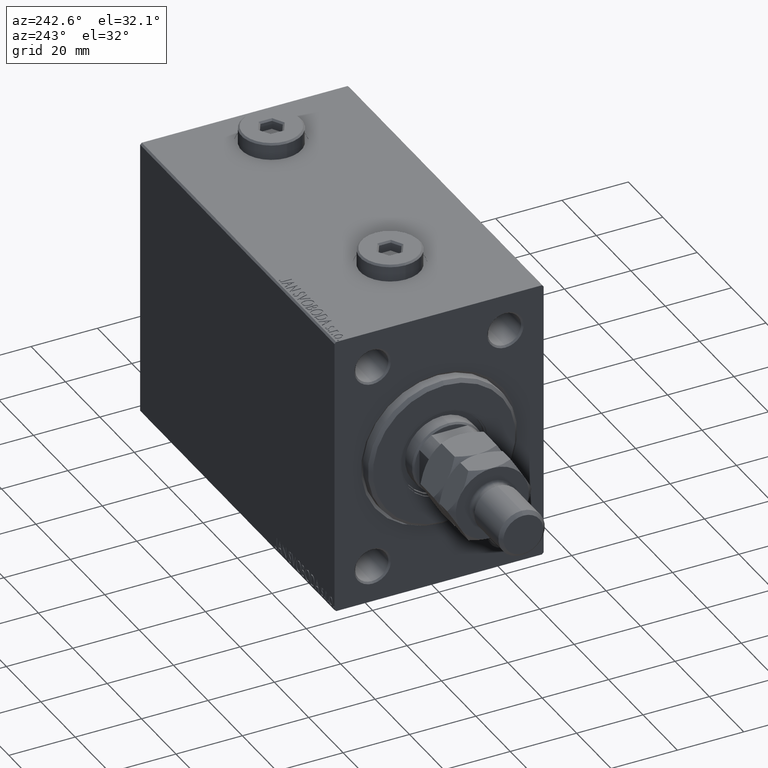
[diagram: clean part render]
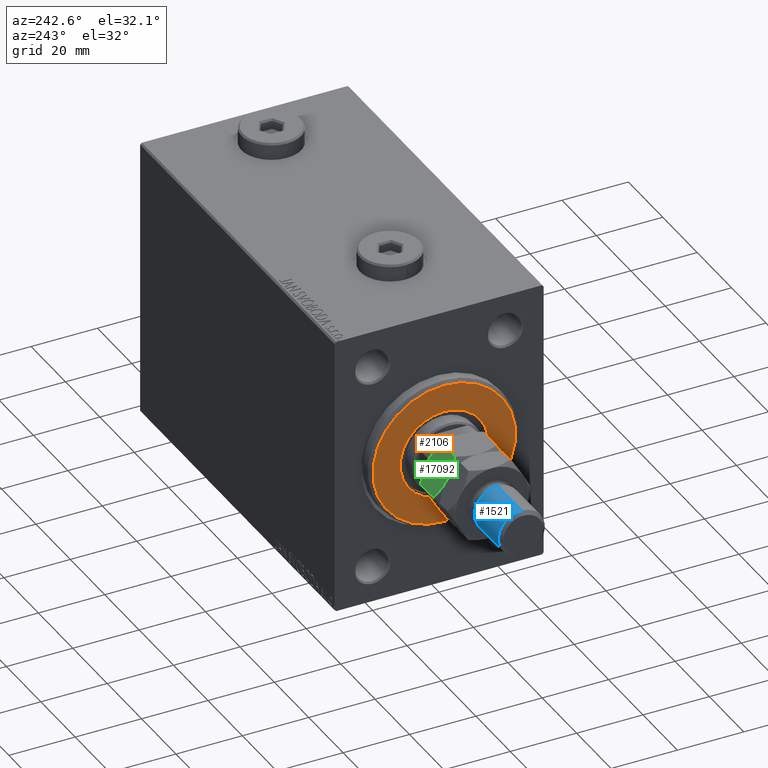
[diagram: same view with three faces highlighted in distinct colors, each labeled with its STEP entity id]
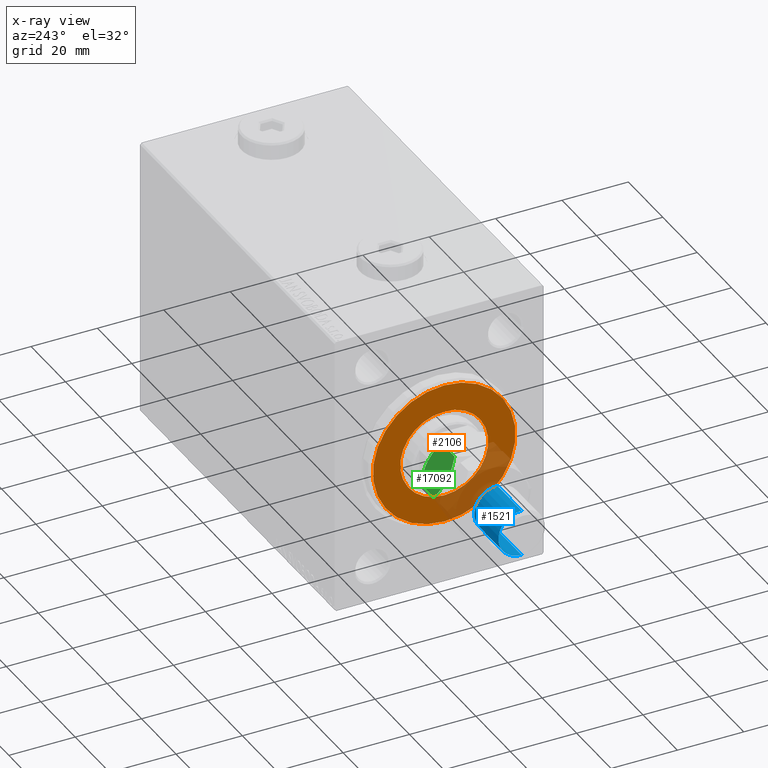
[diagram: x-ray of the same camera — body ghosted, the three highlighted faces saturated]
A machine part, auxiliary view with three faces highlighted in distinct colors.
The next image is the same camera in x-ray (body ghosted, the three faces saturated) — at least one of them is partly hidden behind the body in this view.
Their STEP definitions:

[orange] entity #2106 — the highlighted planar face has unit normal (-1, 0, 0).
#286 = DIRECTION ( 'NONE',  ( 1.000000000000000000, -0.000000000000000000, 0.000000000000000000 ) ) ;
#2106 = ADVANCED_FACE ( 'NONE', ( #25344, #43942 ), #17487, .T. ) ;
#2993 = CIRCLE ( 'NONE', #7588, 21.50000000000000355 ) ;
#7384 = CARTESIAN_POINT ( 'NONE',  ( 3.000000000000000000, 1.622657008870243277E-15, 13.25000000000000178 ) ) ;
#7588 = AXIS2_PLACEMENT_3D ( 'NONE', #21800, #32537, #43741 ) ;
#8364 = AXIS2_PLACEMENT_3D ( 'NONE', #39610, #21268, #18159 ) ;
#9702 = VERTEX_POINT ( 'NONE', #7384 ) ;
#9765 = DIRECTION ( 'NONE',  ( 1.000000000000000000, 0.000000000000000000, 0.000000000000000000 ) ) ;
#10963 = DIRECTION ( 'NONE',  ( 1.000000000000000000, 0.000000000000000000, 0.000000000000000000 ) ) ;
#11523 = AXIS2_PLACEMENT_3D ( 'NONE', #43706, #286, #43237 ) ;
#15216 = CIRCLE ( 'NONE', #8364, 21.50000000000000355 ) ;
#15774 = EDGE_LOOP ( 'NONE', ( #42548, #31243 ) ) ;
#17487 = PLANE ( 'NONE',  #11523 ) ;
#18159 = DIRECTION ( 'NONE',  ( 0.000000000000000000, 0.000000000000000000, -1.000000000000000000 ) ) ;
#20964 = CARTESIAN_POINT ( 'NONE',  ( 3.000000000000000000, 0.000000000000000000, 0.000000000000000000 ) ) ;
#21268 = DIRECTION ( 'NONE',  ( 1.000000000000000000, -0.000000000000000000, 0.000000000000000000 ) ) ;
#21800 = CARTESIAN_POINT ( 'NONE',  ( 3.000000000000000000, 0.000000000000000000, 0.000000000000000000 ) ) ;
#21855 = ORIENTED_EDGE ( 'NONE', *, *, #23402, .F. ) ;
#22645 = CIRCLE ( 'NONE', #40120, 13.25000000000000178 ) ;
#23402 = EDGE_CURVE ( 'NONE', #45604, #9702, #22645, .T. ) ;
#23484 = CARTESIAN_POINT ( 'NONE',  ( 3.000000000000000000, 2.694222958124177598E-15, -21.50000000000000355 ) ) ;
#25344 = FACE_OUTER_BOUND ( 'NONE', #15774, .T. ) ;
#28350 = DIRECTION ( 'NONE',  ( 0.000000000000000000, 0.000000000000000000, -1.000000000000000000 ) ) ;
#28624 = EDGE_CURVE ( 'NONE', #29833, #32337, #2993, .T. ) ;
#29332 = CARTESIAN_POINT ( 'NONE',  ( 3.000000000000000000, 0.000000000000000000, 0.000000000000000000 ) ) ;
#29833 = VERTEX_POINT ( 'NONE', #31550 ) ;
#31243 = ORIENTED_EDGE ( 'NONE', *, *, #33946, .T. ) ;
#31550 = CARTESIAN_POINT ( 'NONE',  ( 3.000000000000000000, 0.000000000000000000, 21.50000000000000355 ) ) ;
#32003 = ORIENTED_EDGE ( 'NONE', *, *, #44231, .F. ) ;
#32337 = VERTEX_POINT ( 'NONE', #23484 ) ;
#32437 = EDGE_LOOP ( 'NONE', ( #21855, #32003 ) ) ;
#32537 = DIRECTION ( 'NONE',  ( 1.000000000000000000, -0.000000000000000000, 0.000000000000000000 ) ) ;
#33842 = CIRCLE ( 'NONE', #37640, 13.25000000000000178 ) ;
#33946 = EDGE_CURVE ( 'NONE', #32337, #29833, #15216, .T. ) ;
#37640 = AXIS2_PLACEMENT_3D ( 'NONE', #29332, #10963, #43882 ) ;
#39610 = CARTESIAN_POINT ( 'NONE',  ( 3.000000000000000000, 0.000000000000000000, 0.000000000000000000 ) ) ;
#40120 = AXIS2_PLACEMENT_3D ( 'NONE', #20964, #9765, #28350 ) ;
#42548 = ORIENTED_EDGE ( 'NONE', *, *, #28624, .T. ) ;
#43237 = DIRECTION ( 'NONE',  ( 0.000000000000000000, 0.000000000000000000, -1.000000000000000000 ) ) ;
#43706 = CARTESIAN_POINT ( 'NONE',  ( 3.000000000000000000, 0.000000000000000000, 0.000000000000000000 ) ) ;
#43741 = DIRECTION ( 'NONE',  ( 0.000000000000000000, 0.000000000000000000, -1.000000000000000000 ) ) ;
#43882 = DIRECTION ( 'NONE',  ( 0.000000000000000000, 0.000000000000000000, -1.000000000000000000 ) ) ;
#43942 = FACE_BOUND ( 'NONE', #32437, .T. ) ;
#44231 = EDGE_CURVE ( 'NONE', #9702, #45604, #33842, .T. ) ;
#45604 = VERTEX_POINT ( 'NONE', #46352 ) ;
#46352 = CARTESIAN_POINT ( 'NONE',  ( 3.000000000000000000, 0.000000000000000000, -13.25000000000000178 ) ) ;

[blue] entity #1521 — the highlighted cylindrical surface (edge-blend (fillet) strip) has radius 7 mm, axis along (1, -0, -0).
#4 = ORIENTED_EDGE ( 'NONE', *, *, #16789, .T. ) ;
#1521 = ADVANCED_FACE ( 'NONE', ( #25273 ), #21002, .T. ) ;
#1897 = CIRCLE ( 'NONE', #41485, 7.000000000000000000 ) ;
#2228 = LINE ( 'NONE', #30619, #37903 ) ;
#7065 = CARTESIAN_POINT ( 'NONE',  ( 0.000000000000000000, 0.000000000000000000, 22.00000000000000355 ) ) ;
#7755 = AXIS2_PLACEMENT_3D ( 'NONE', #31736, #32202, #14315 ) ;
#10021 = ORIENTED_EDGE ( 'NONE', *, *, #34372, .F. ) ;
#10451 = VERTEX_POINT ( 'NONE', #32788 ) ;
#12831 = DIRECTION ( 'NONE',  ( -0.000000000000000000, -0.000000000000000000, -1.000000000000000000 ) ) ;
#14315 = DIRECTION ( 'NONE',  ( -1.000000000000000000, 0.000000000000000000, 0.000000000000000000 ) ) ;
#16789 = EDGE_CURVE ( 'NONE', #28061, #10451, #1897, .T. ) ;
#18029 = DIRECTION ( 'NONE',  ( 1.000000000000000000, 0.000000000000000000, 0.000000000000000000 ) ) ;
#18271 = VERTEX_POINT ( 'NONE', #43672 ) ;
#20457 = LINE ( 'NONE', #24043, #24339 ) ;
#21002 = CYLINDRICAL_SURFACE ( 'NONE', #7755, 7.000000000000000000 ) ;
#21266 = EDGE_LOOP ( 'NONE', ( #30995, #46515, #4, #10021 ) ) ;
#22068 = DIRECTION ( 'NONE',  ( 0.000000000000000000, 0.000000000000000000, -1.000000000000000000 ) ) ;
#23264 = VERTEX_POINT ( 'NONE', #29104 ) ;
#23903 = EDGE_CURVE ( 'NONE', #23264, #18271, #35575, .T. ) ;
#24043 = CARTESIAN_POINT ( 'NONE',  ( -7.000000000000000000, 0.000000000000000000, 37.00000000000000000 ) ) ;
#24339 = VECTOR ( 'NONE', #12831, 1000.000000000000000 ) ;
#25273 = FACE_OUTER_BOUND ( 'NONE', #21266, .T. ) ;
#25419 = DIRECTION ( 'NONE',  ( -0.000000000000000000, -0.000000000000000000, 1.000000000000000000 ) ) ;
#25767 = EDGE_CURVE ( 'NONE', #18271, #28061, #2228, .T. ) ;
#28061 = VERTEX_POINT ( 'NONE', #41675 ) ;
#29104 = CARTESIAN_POINT ( 'NONE',  ( -7.000000000000000000, 0.000000000000000000, 35.99999999999999289 ) ) ;
#30619 = CARTESIAN_POINT ( 'NONE',  ( 7.000000000000000000, 8.572527594031473190E-16, 37.00000000000000000 ) ) ;
#30995 = ORIENTED_EDGE ( 'NONE', *, *, #23903, .T. ) ;
#31736 = CARTESIAN_POINT ( 'NONE',  ( 0.000000000000000000, 0.000000000000000000, 37.00000000000000000 ) ) ;
#32202 = DIRECTION ( 'NONE',  ( -0.000000000000000000, -0.000000000000000000, -1.000000000000000000 ) ) ;
#32788 = CARTESIAN_POINT ( 'NONE',  ( -7.000000000000000000, 0.000000000000000000, 22.00000000000000355 ) ) ;
#32811 = DIRECTION ( 'NONE',  ( 1.000000000000000000, 0.000000000000000000, 0.000000000000000000 ) ) ;
#34372 = EDGE_CURVE ( 'NONE', #23264, #10451, #20457, .T. ) ;
#35575 = CIRCLE ( 'NONE', #45470, 7.000000000000000000 ) ;
#37903 = VECTOR ( 'NONE', #45863, 1000.000000000000000 ) ;
#41485 = AXIS2_PLACEMENT_3D ( 'NONE', #7065, #25419, #32811 ) ;
#41675 = CARTESIAN_POINT ( 'NONE',  ( 7.000000000000000000, 8.572527594031473190E-16, 22.00000000000000355 ) ) ;
#43672 = CARTESIAN_POINT ( 'NONE',  ( 7.000000000000000000, 8.572527594031473190E-16, 35.99999999999999289 ) ) ;
#44253 = CARTESIAN_POINT ( 'NONE',  ( 0.000000000000000000, 0.000000000000000000, 35.99999999999999289 ) ) ;
#45470 = AXIS2_PLACEMENT_3D ( 'NONE', #44253, #22068, #18029 ) ;
#45863 = DIRECTION ( 'NONE',  ( -0.000000000000000000, -0.000000000000000000, -1.000000000000000000 ) ) ;
#46515 = ORIENTED_EDGE ( 'NONE', *, *, #25767, .T. ) ;

[green] entity #17092 — the highlighted planar face has unit normal (-0, -0.866, -0.5).
#1520 = B_SPLINE_CURVE_WITH_KNOTS ( 'NONE', 3,
 ( #36978, #21961, #46767, #14573, #21492, #11472, #36740, #25075 ),
 .UNSPECIFIED., .F., .F.,
 ( 4, 2, 2, 4 ),
 ( 2.544311317623912303E-07, 0.003291871675740029504, 0.004937680298044162114, 0.006583488920348296025 ),
 .UNSPECIFIED. ) ;
#1533 = CARTESIAN_POINT ( 'NONE',  ( 7.397073880711847238, 8.431003325927232339, 0.1689086083647579339 ) ) ;
#3233 = EDGE_CURVE ( 'NONE', #31480, #35224, #1520, .T. ) ;
#3338 = CARTESIAN_POINT ( 'NONE',  ( 7.420105971005182433, 8.417705742396377033, 10.79187792513293154 ) ) ;
#3422 = CARTESIAN_POINT ( 'NONE',  ( 9.006588997586899406E-16, 12.70170592217176342, 1.701705922171758312 ) ) ;
#3655 = CARTESIAN_POINT ( 'NONE',  ( 11.00000000000000000, 6.350852961085883486, 11.00000000000000000 ) ) ;
#6553 = CARTESIAN_POINT ( 'NONE',  ( 11.00000000000000000, 6.350852961085883486, 1.701705922171761198 ) ) ;
#7627 = EDGE_CURVE ( 'NONE', #22272, #12137, #35216, .T. ) ;
#10720 = CARTESIAN_POINT ( 'NONE',  ( 9.255521992360790762, 7.358027808391762292, 10.21937661245322460 ) ) ;
#10811 = DIRECTION ( 'NONE',  ( 0.8660254037844387076, -0.4999999999999998890, 0.000000000000000000 ) ) ;
#11472 = CARTESIAN_POINT ( 'NONE',  ( 4.529374112020105869, 10.08667055933643830, 0.04365929743512447087 ) ) ;
#11706 = CARTESIAN_POINT ( 'NONE',  ( 11.00000000000000000, 6.350852961085883486, 9.298294077828240134 ) ) ;
#12137 = VERTEX_POINT ( 'NONE', #16238 ) ;
#12317 = EDGE_LOOP ( 'NONE', ( #33450, #41290, #29078, #15817, #31540, #38821 ) ) ;
#12744 = CARTESIAN_POINT ( 'NONE',  ( 9.251785468064189999, 7.360185091700237159, 0.7776848045220270400 ) ) ;
#13394 = VERTEX_POINT ( 'NONE', #11706 ) ;
#14397 = DIRECTION ( 'NONE',  ( -0.4999999999999998890, -0.8660254037844387076, 0.000000000000000000 ) ) ;
#14573 = CARTESIAN_POINT ( 'NONE',  ( 3.115032419653387397, 10.90324111615047364, 0.3282192120904029453 ) ) ;
#14779 = B_SPLINE_CURVE_WITH_KNOTS ( 'NONE', 3,
 ( #34203, #31099, #1533, #12744, #16091, #27279 ),
 .UNSPECIFIED., .F., .F.,
 ( 4, 2, 4 ),
 ( 0.006583488920348296025, 0.009852050593448707927, 0.01312061226654912330 ),
 .UNSPECIFIED. ) ;
#14840 = AXIS2_PLACEMENT_3D ( 'NONE', #3655, #14397, #10811 ) ;
#15001 = B_SPLINE_CURVE_WITH_KNOTS ( 'NONE', 3,
 ( #21459, #46972, #10720, #36004, #3338, #18118, #29084, #40278 ),
 .UNSPECIFIED., .F., .F.,
 ( 4, 2, 2, 4 ),
 ( 2.544311317614349830E-07, 0.003291871675740032106, 0.004937680298044164716, 0.006583488920348298627 ),
 .UNSPECIFIED. ) ;
#15476 = LINE ( 'NONE', #22394, #25865 ) ;
#15817 = ORIENTED_EDGE ( 'NONE', *, *, #20999, .F. ) ;
#16091 = CARTESIAN_POINT ( 'NONE',  ( 10.13851939750335696, 6.848229018838962290, 1.204329864418605567 ) ) ;
#16238 = CARTESIAN_POINT ( 'NONE',  ( -4.327962126576701651E-16, 12.70170592217176342, 9.298294077828241910 ) ) ;
#17092 = ADVANCED_FACE ( 'NONE', ( #17503 ), #42542, .F. ) ;
#17503 = FACE_OUTER_BOUND ( 'NONE', #12317, .T. ) ;
#18118 = CARTESIAN_POINT ( 'NONE',  ( 6.470625887979895019, 8.965888323921213043, 10.95634070256487824 ) ) ;
#18367 = VECTOR ( 'NONE', #25824, 1000.000000000000000 ) ;
#20999 = EDGE_CURVE ( 'NONE', #13394, #22272, #15001, .T. ) ;
#21018 = CARTESIAN_POINT ( 'NONE',  ( -4.327962126576701651E-16, 12.70170592217176342, 9.298294077828241910 ) ) ;
#21459 = CARTESIAN_POINT ( 'NONE',  ( 11.00000000000000000, 6.350852961085883486, 9.298294077828240134 ) ) ;
#21492 = CARTESIAN_POINT ( 'NONE',  ( 3.579894028994819788, 10.63485314086127431, 0.2081220748670722098 ) ) ;
#21961 = CARTESIAN_POINT ( 'NONE',  ( 0.8624791307172143817, 12.20375336388174503, 1.203753363881742811 ) ) ;
#22272 = VERTEX_POINT ( 'NONE', #45570 ) ;
#22394 = CARTESIAN_POINT ( 'NONE',  ( 0.000000000000000000, 12.70170592217176342, 11.00000000000000000 ) ) ;
#24597 = CARTESIAN_POINT ( 'NONE',  ( 4.543329525579426154, 10.07861339756131080, 11.00000000000000000 ) ) ;
#25075 = CARTESIAN_POINT ( 'NONE',  ( 5.499999999999999112, 9.526279441628826561, 0.000000000000000000 ) ) ;
#25286 = CARTESIAN_POINT ( 'NONE',  ( 5.499999999999998224, 9.526279441628819455, 11.00000000000000000 ) ) ;
#25521 = CARTESIAN_POINT ( 'NONE',  ( 0.8614806024966432663, 12.20432986441868728, 9.795670135581396210 ) ) ;
#25824 = DIRECTION ( 'NONE',  ( -0.000000000000000000, -0.000000000000000000, -1.000000000000000000 ) ) ;
#25865 = VECTOR ( 'NONE', #44560, 1000.000000000000000 ) ;
#27279 = CARTESIAN_POINT ( 'NONE',  ( 11.00000000000000000, 6.350852961085883486, 1.701705922171761198 ) ) ;
#27574 = VERTEX_POINT ( 'NONE', #6553 ) ;
#28088 = CARTESIAN_POINT ( 'NONE',  ( 5.499999999999999112, 9.526279441628826561, 0.000000000000000000 ) ) ;
#28934 = CARTESIAN_POINT ( 'NONE',  ( 11.00000000000000000, 6.350852961085883486, 11.00000000000000000 ) ) ;
#29078 = ORIENTED_EDGE ( 'NONE', *, *, #7627, .F. ) ;
#29084 = CARTESIAN_POINT ( 'NONE',  ( 5.981709287746640236, 9.248164454677155533, 11.00000000000000000 ) ) ;
#30673 = EDGE_CURVE ( 'NONE', #35224, #27574, #14779, .T. ) ;
#31099 = CARTESIAN_POINT ( 'NONE',  ( 6.456670474420574735, 8.973945485696338764, -1.192622389734053694E-15 ) ) ;
#31480 = VERTEX_POINT ( 'NONE', #3422 ) ;
#31540 = ORIENTED_EDGE ( 'NONE', *, *, #37637, .T. ) ;
#33450 = ORIENTED_EDGE ( 'NONE', *, *, #3233, .F. ) ;
#34203 = CARTESIAN_POINT ( 'NONE',  ( 5.499999999999999112, 9.526279441628826561, 0.000000000000000000 ) ) ;
#34282 = EDGE_CURVE ( 'NONE', #12137, #31480, #15476, .T. ) ;
#35216 = B_SPLINE_CURVE_WITH_KNOTS ( 'NONE', 3,
 ( #25286, #24597, #42941, #43652, #25521, #21018 ),
 .UNSPECIFIED., .F., .F.,
 ( 4, 2, 4 ),
 ( 0.006583488920348298627, 0.009852050593448711396, 0.01312061226654912156 ),
 .UNSPECIFIED. ) ;
#35224 = VERTEX_POINT ( 'NONE', #28088 ) ;
#36004 = CARTESIAN_POINT ( 'NONE',  ( 7.884967580346613936, 8.149317767107177701, 10.67178078790959717 ) ) ;
#36740 = CARTESIAN_POINT ( 'NONE',  ( 5.018290712253357100, 9.804394428580492260, -1.345088320239828938E-15 ) ) ;
#36790 = LINE ( 'NONE', #28934, #18367 ) ;
#36978 = CARTESIAN_POINT ( 'NONE',  ( 9.006588997586899406E-16, 12.70170592217176342, 1.701705922171758312 ) ) ;
#37637 = EDGE_CURVE ( 'NONE', #13394, #27574, #36790, .T. ) ;
#38821 = ORIENTED_EDGE ( 'NONE', *, *, #30673, .F. ) ;
#40278 = CARTESIAN_POINT ( 'NONE',  ( 5.499999999999998224, 9.526279441628819455, 11.00000000000000000 ) ) ;
#41290 = ORIENTED_EDGE ( 'NONE', *, *, #34282, .F. ) ;
#42542 = PLANE ( 'NONE',  #14840 ) ;
#42941 = CARTESIAN_POINT ( 'NONE',  ( 3.602926119288152318, 10.62155555733041901, 10.83109139163524581 ) ) ;
#43652 = CARTESIAN_POINT ( 'NONE',  ( 1.748214531935807559, 11.69237379155741152, 10.22231519547797518 ) ) ;
#44560 = DIRECTION ( 'NONE',  ( -0.000000000000000000, -0.000000000000000000, -1.000000000000000000 ) ) ;
#45570 = CARTESIAN_POINT ( 'NONE',  ( 5.499999999999998224, 9.526279441628819455, 11.00000000000000000 ) ) ;
#46767 = CARTESIAN_POINT ( 'NONE',  ( 1.744478007639208350, 11.69453107486588195, 0.7806233875467714078 ) ) ;
#46972 = CARTESIAN_POINT ( 'NONE',  ( 10.13752086928278295, 6.848805519375901874, 9.796246636118256745 ) ) ;